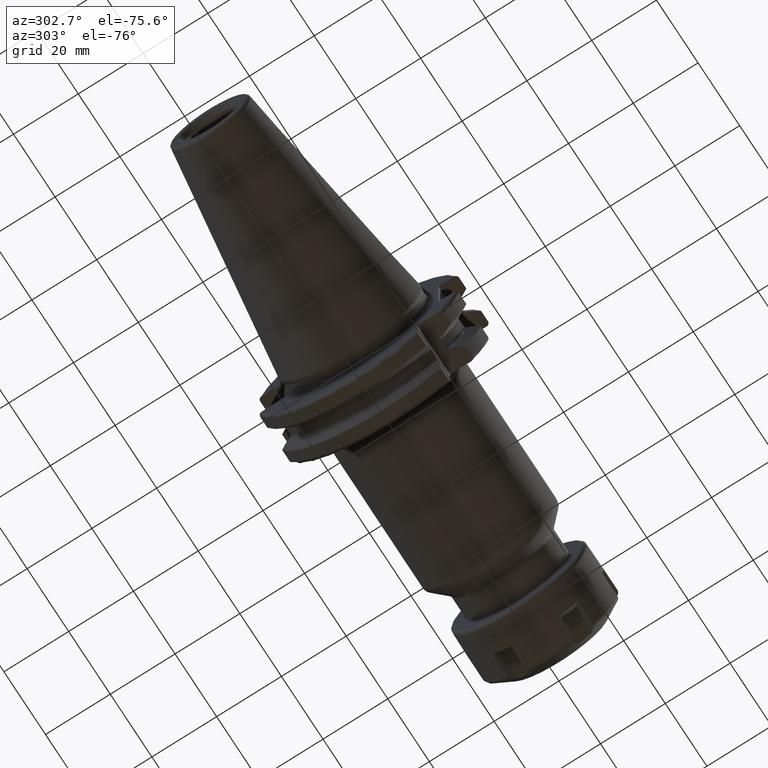
[diagram: clean part render]
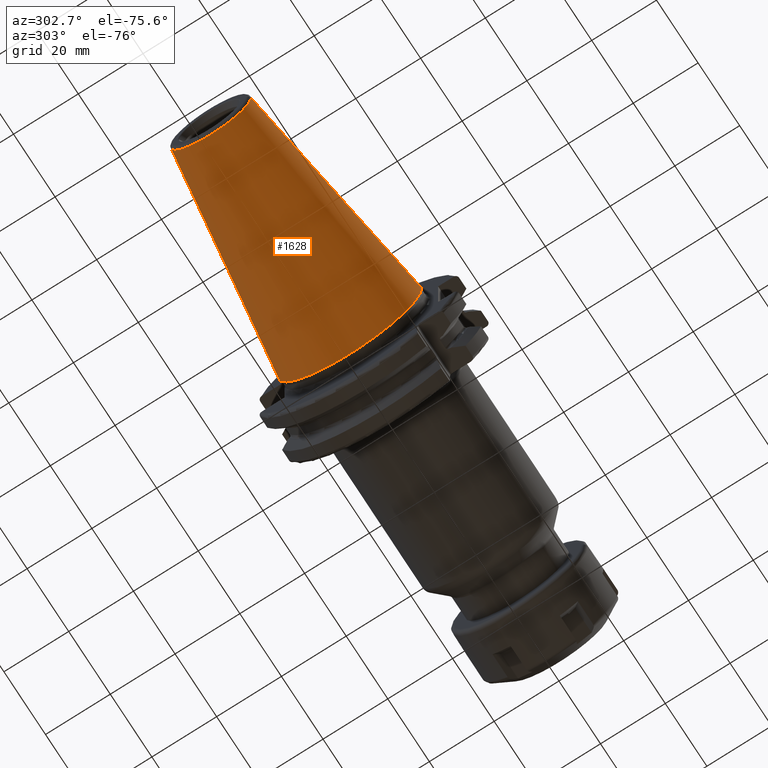
[diagram: same view with one face highlighted and labeled with its STEP entity id]
A machine part, auxiliary view. The second image highlights one B-rep face of the part: STEP entity #1628.
In plain terms, the highlighted conical surface has half-angle 8.298 deg.
Its self-contained STEP definition (entity closure, byte-faithful):
#32=CARTESIAN_POINT('',(-6.743710273571E1,0.E0,0.E0));
#33=DIRECTION('',(-1.E0,0.E0,0.E0));
#34=DIRECTION('',(0.E0,1.E0,0.E0));
#35=AXIS2_PLACEMENT_3D('',#32,#33,#34);
#47=DIRECTION('',(-9.895312636440E-1,-1.443186691705E-1,0.E0));
#48=VECTOR('',#47,6.765568998391E1);
#49=CARTESIAN_POINT('',(-4.896823332305E-1,2.215358204157E1,0.E0));
#50=LINE('',#49,#48);
#51=DIRECTION('',(-9.895312636440E-1,1.443186691705E-1,0.E0));
#52=VECTOR('',#51,6.765568998391E1);
#53=CARTESIAN_POINT('',(-4.896823332305E-1,-2.215358204157E1,0.E0));
#54=LINE('',#53,#52);
#55=CARTESIAN_POINT('',(-4.896823332305E-1,0.E0,0.E0));
#56=DIRECTION('',(-1.E0,0.E0,0.E0));
#57=DIRECTION('',(0.E0,1.E0,0.E0));
#58=AXIS2_PLACEMENT_3D('',#55,#56,#57);
#1288=CARTESIAN_POINT('',(-6.743710273571E1,1.238960290128E1,0.E0));
#1290=VERTEX_POINT('',#1288);
#1292=CARTESIAN_POINT('',(-6.743710273571E1,-1.238960290128E1,0.E0));
#1294=VERTEX_POINT('',#1292);
#1356=CARTESIAN_POINT('',(-4.896823332305E-1,2.215358204157E1,0.E0));
#1357=VERTEX_POINT('',#1356);
#1358=CARTESIAN_POINT('',(-4.896823332305E-1,-2.215358204157E1,0.E0));
#1359=VERTEX_POINT('',#1358);
#1616=CARTESIAN_POINT('',(-3.396339253447E1,0.E0,0.E0));
#1617=DIRECTION('',(1.E0,0.E0,0.E0));
#1618=DIRECTION('',(0.E0,-1.E0,0.E0));
#1619=AXIS2_PLACEMENT_3D('',#1616,#1617,#1618);
#1620=CONICAL_SURFACE('',#1619,1.727159247143E1,8.297826828206E0);
#1621=ORIENTED_EDGE('',*,*,#1606,.T.);
#1622=ORIENTED_EDGE('',*,*,#1583,.T.);
#1623=ORIENTED_EDGE('',*,*,#1610,.F.);
#1625=ORIENTED_EDGE('',*,*,#1624,.F.);
#1626=EDGE_LOOP('',(#1621,#1622,#1623,#1625));
#1627=FACE_OUTER_BOUND('',#1626,.F.);
#1628=ADVANCED_FACE('',(#1627),#1620,.T.);
#36=CIRCLE('',#35,1.238960290128E1);
#59=CIRCLE('',#58,2.215358204157E1);
#1583=EDGE_CURVE('',#1290,#1294,#36,.T.);
#1606=EDGE_CURVE('',#1357,#1290,#50,.T.);
#1610=EDGE_CURVE('',#1359,#1294,#54,.T.);
#1624=EDGE_CURVE('',#1357,#1359,#59,.T.);